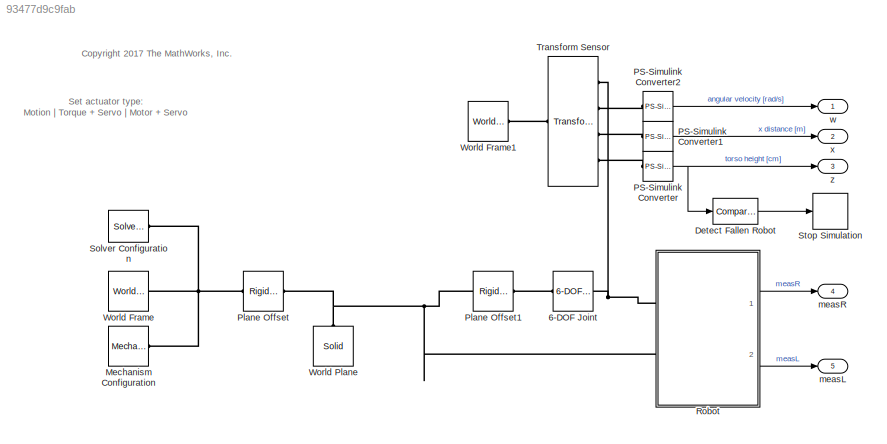
MODEL slx_93477d9c9fab
KIND model
CONFIG AbsTol = auto
CONFIG EnableMultiTasking = on
CONFIG FixedStep = auto
CONFIG InitFcn = initAnglesR = evalSmoothTrajectory(curveData,0);\ninitAnglesL = evalSmoothTrajectory(curveData,-curveData.gaitPeriod/2);
CONFIG MaxStep = auto
CONFIG MinStep = auto
CONFIG RelTol = auto
CONFIG SampleTimeConstraint = Unconstrained
CONFIG Solver = ode15s
CONFIG SolverName = ode15s
CONFIG StartTime = 0.0
CONFIG StopTime = 10
BLOCK [Reference] 6-DOF Joint  REF=sm_lib/Joints/6-DOF Joint
  Ports = [0, 0, 0, 0, 0, 1, 1]
  SourceBlock = sm_lib/Joints/6-DOF Joint
  SourceProductBaseCode = MS
  SourceProductName = Simscape Multibody
  SourceType = 6-DOF Joint
BLOCK [Reference] Detect Fallen Robot  REF=simulink/Logic and Bit
Operations/Compare
To Constant
  Ports = [1, 1]
  SourceBlock = simulink/Logic and Bit\nOperations/Compare\nTo Constant
  SourceProductBaseCode = SL
  SourceProductName = Simulink
  SourceType = Compare To Constant
BLOCK [Reference] Mechanism Configuration  REF=sm_lib/Utilities/Mechanism
Configuration
  Ports = [0, 0, 0, 0, 0, 0, 1]
  SourceBlock = sm_lib/Utilities/Mechanism\nConfiguration
  SourceProductBaseCode = MS
  SourceProductName = Simscape Multibody
  SourceType = Mechanism\nConfiguration
BLOCK [Reference] PS-Simulink Converter  REF=nesl_utility/PS-Simulink
Converter
  Ports = [0, 1, 0, 0, 0, 1]
  SourceBlock = nesl_utility/PS-Simulink\nConverter
  SourceProductBaseCode = SS
  SourceProductName = Simscape
  SourceType = PS-Simulink\nConverter
BLOCK [Reference] PS-Simulink Converter1  REF=nesl_utility/PS-Simulink
Converter
  Ports = [0, 1, 0, 0, 0, 1]
  SourceBlock = nesl_utility/PS-Simulink\nConverter
  SourceProductBaseCode = SS
  SourceProductName = Simscape
  SourceType = PS-Simulink\nConverter
BLOCK [Reference] PS-Simulink Converter2  REF=nesl_utility/PS-Simulink
Converter
  Ports = [0, 1, 0, 0, 0, 1]
  SourceBlock = nesl_utility/PS-Simulink\nConverter
  SourceProductBaseCode = SS
  SourceProductName = Simscape
  SourceType = PS-Simulink\nConverter
BLOCK [Reference] Plane Offset  REF=sm_lib/Frames and
Transforms/Rigid
Transform
  Ports = [0, 0, 0, 0, 0, 1, 1]
  SourceBlock = sm_lib/Frames and\nTransforms/Rigid\nTransform
  SourceProductBaseCode = MS
  SourceProductName = Simscape Multibody
  SourceType = Rigid\nTransform
BLOCK [Reference] Plane Offset1  REF=sm_lib/Frames and
Transforms/Rigid
Transform
  Ports = [0, 0, 0, 0, 0, 1, 1]
  SourceBlock = sm_lib/Frames and\nTransforms/Rigid\nTransform
  SourceProductBaseCode = MS
  SourceProductName = Simscape Multibody
  SourceType = Rigid\nTransform
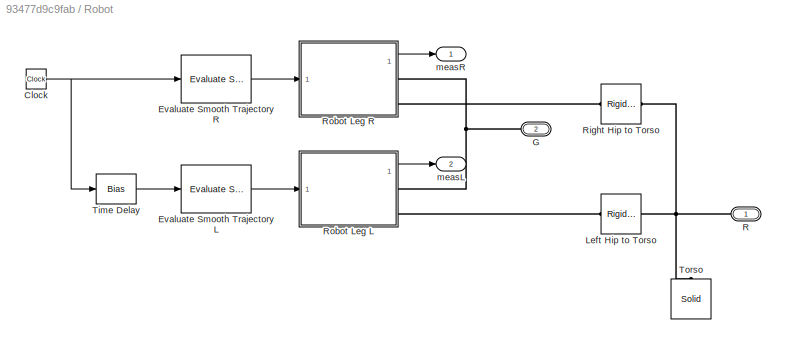
BLOCK [SubSystem] Robot
  Ports = [0, 2, 0, 0, 0, 2]
  RequestExecContextInheritance = off
  Variant = off
BLOCK [Clock] Robot/Clock
  Decimation = 1
BLOCK [Reference] Robot/Evaluate Smooth Trajectory L  REF=walkingRobotUtils/Evaluate Smooth 
Trajectory
  Ports = [1, 1]
  SourceBlock = walkingRobotUtils/Evaluate Smooth \nTrajectory
  SourceType = SubSystem
BLOCK [Reference] Robot/Evaluate Smooth Trajectory R  REF=walkingRobotUtils/Evaluate Smooth 
Trajectory
  Ports = [1, 1]
  SourceBlock = walkingRobotUtils/Evaluate Smooth \nTrajectory
  SourceType = SubSystem
BLOCK [PMIOPort] Robot/G
  Port = 2
  Side = Left
BLOCK [Reference] Robot/Left Hip to Torso  REF=sm_lib/Frames and
Transforms/Rigid
Transform
  Ports = [0, 0, 0, 0, 0, 1, 1]
  SourceBlock = sm_lib/Frames and\nTransforms/Rigid\nTransform
  SourceProductBaseCode = MS
  SourceProductName = Simscape Multibody
  SourceType = Rigid\nTransform
BLOCK [PMIOPort] Robot/R
  Port = 1
  Side = Left
BLOCK [Reference] Robot/Right Hip to Torso  REF=sm_lib/Frames and
Transforms/Rigid
Transform
  Ports = [0, 0, 0, 0, 0, 1, 1]
  SourceBlock = sm_lib/Frames and\nTransforms/Rigid\nTransform
  SourceProductBaseCode = MS
  SourceProductName = Simscape Multibody
  SourceType = Rigid\nTransform
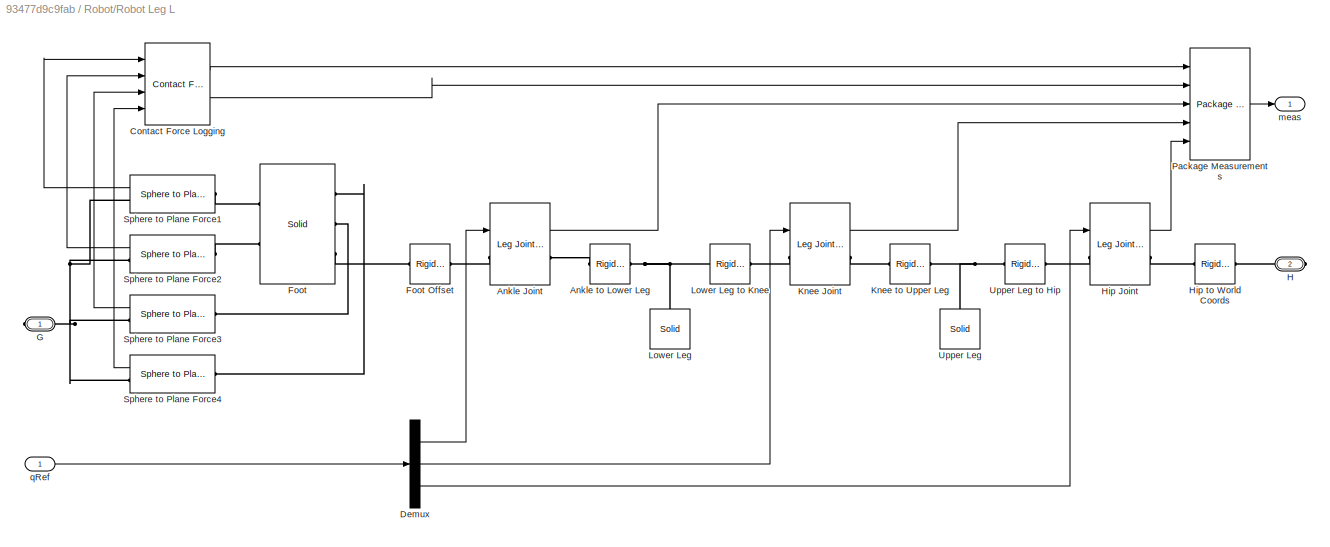
BLOCK [SubSystem] Robot/Robot Leg L
  Ports = [1, 1, 0, 0, 0, 0, 2]
  RequestExecContextInheritance = off
  Variant = off
BLOCK [Reference] Robot/Robot Leg L/Ankle Joint  REF=walkingRobotUtils/Leg Joint Actuator
  Ports = [1, 1, 0, 0, 0, 1, 1]
  SourceBlock = walkingRobotUtils/Leg Joint Actuator
  SourceType = Leg Joint Actuator
BLOCK [Reference] Robot/Robot Leg L/Ankle to Lower Leg  REF=sm_lib/Frames and
Transforms/Rigid
Transform
  Ports = [0, 0, 0, 0, 0, 1, 1]
  SourceBlock = sm_lib/Frames and\nTransforms/Rigid\nTransform
  SourceProductBaseCode = MS
  SourceProductName = Simscape Multibody
  SourceType = Rigid\nTransform
BLOCK [Reference] Robot/Robot Leg L/Contact Force Logging  REF=walkingRobotUtils/Contact Force Logging
  Ports = [4, 2]
  SourceBlock = walkingRobotUtils/Contact Force Logging
  SourceType = SubSystem
BLOCK [Demux] Robot/Robot Leg L/Demux
  DisplayOption = bar
  Outputs = 3
  Ports = [1, 3]
BLOCK [Reference] Robot/Robot Leg L/Foot  REF=sm_lib/Body Elements/Solid
  Ports = [0, 0, 0, 0, 0, 3, 2]
  SourceBlock = sm_lib/Body Elements/Solid
  SourceProductBaseCode = MS
  SourceProductName = Simscape Multibody
  SourceType = Solid
BLOCK [Reference] Robot/Robot Leg L/Foot Offset  REF=sm_lib/Frames and
Transforms/Rigid
Transform
  Ports = [0, 0, 0, 0, 0, 1, 1]
  SourceBlock = sm_lib/Frames and\nTransforms/Rigid\nTransform
  SourceProductBaseCode = MS
  SourceProductName = Simscape Multibody
  SourceType = Rigid\nTransform
BLOCK [PMIOPort] Robot/Robot Leg L/G
  Port = 1
  Side = Right
BLOCK [PMIOPort] Robot/Robot Leg L/H
  Port = 2
  Side = Right
BLOCK [Reference] Robot/Robot Leg L/Hip Joint  REF=walkingRobotUtils/Leg Joint Actuator
  Ports = [1, 1, 0, 0, 0, 1, 1]
  SourceBlock = walkingRobotUtils/Leg Joint Actuator
  SourceType = Leg Joint Actuator
BLOCK [Reference] Robot/Robot Leg L/Hip to World Coords  REF=sm_lib/Frames and
Transforms/Rigid
Transform
  Ports = [0, 0, 0, 0, 0, 1, 1]
  SourceBlock = sm_lib/Frames and\nTransforms/Rigid\nTransform
  SourceProductBaseCode = MS
  SourceProductName = Simscape Multibody
  SourceType = Rigid\nTransform
BLOCK [Reference] Robot/Robot Leg L/Knee Joint  REF=walkingRobotUtils/Leg Joint Actuator
  Ports = [1, 1, 0, 0, 0, 1, 1]
  SourceBlock = walkingRobotUtils/Leg Joint Actuator
  SourceType = Leg Joint Actuator
BLOCK [Reference] Robot/Robot Leg L/Knee to Upper Leg  REF=sm_lib/Frames and
Transforms/Rigid
Transform
  Ports = [0, 0, 0, 0, 0, 1, 1]
  SourceBlock = sm_lib/Frames and\nTransforms/Rigid\nTransform
  SourceProductBaseCode = MS
  SourceProductName = Simscape Multibody
  SourceType = Rigid\nTransform
BLOCK [Reference] Robot/Robot Leg L/Lower Leg  REF=sm_lib/Body Elements/Solid
  Ports = [0, 0, 0, 0, 0, 0, 1]
  SourceBlock = sm_lib/Body Elements/Solid
  SourceProductBaseCode = MS
  SourceProductName = Simscape Multibody
  SourceType = Solid
BLOCK [Reference] Robot/Robot Leg L/Lower Leg to Knee  REF=sm_lib/Frames and
Transforms/Rigid
Transform
  Ports = [0, 0, 0, 0, 0, 1, 1]
  SourceBlock = sm_lib/Frames and\nTransforms/Rigid\nTransform
  SourceProductBaseCode = MS
  SourceProductName = Simscape Multibody
  SourceType = Rigid\nTransform
BLOCK [Reference] Robot/Robot Leg L/Package Measurements  REF=walkingRobotUtils/Package 
Measurements
  Ports = [5, 1]
  SourceBlock = walkingRobotUtils/Package \nMeasurements
  SourceType = SubSystem
BLOCK [Reference] Robot/Robot Leg L/Sphere to Plane Force1  REF=Contact_Forces_Lib/3D/Sphere to Plane Force
  Ports = [0, 1, 0, 0, 0, 1, 1]
  SourceBlock = Contact_Forces_Lib/3D/Sphere to Plane Force
  SourceProductName = Simscape Multibody Contact Forces Library
  SourceType = Sphere to Plane Force
BLOCK [Reference] Robot/Robot Leg L/Sphere to Plane Force2  REF=Contact_Forces_Lib/3D/Sphere to Plane Force
  Ports = [0, 1, 0, 0, 0, 1, 1]
  SourceBlock = Contact_Forces_Lib/3D/Sphere to Plane Force
  SourceProductName = Simscape Multibody Contact Forces Library
  SourceType = Sphere to Plane Force
BLOCK [Reference] Robot/Robot Leg L/Sphere to Plane Force3  REF=Contact_Forces_Lib/3D/Sphere to Plane Force
  Ports = [0, 1, 0, 0, 0, 1, 1]
  SourceBlock = Contact_Forces_Lib/3D/Sphere to Plane Force
  SourceProductName = Simscape Multibody Contact Forces Library
  SourceType = Sphere to Plane Force
BLOCK [Reference] Robot/Robot Leg L/Sphere to Plane Force4  REF=Contact_Forces_Lib/3D/Sphere to Plane Force
  Ports = [0, 1, 0, 0, 0, 1, 1]
  SourceBlock = Contact_Forces_Lib/3D/Sphere to Plane Force
  SourceProductName = Simscape Multibody Contact Forces Library
  SourceType = Sphere to Plane Force
BLOCK [Reference] Robot/Robot Leg L/Upper Leg  REF=sm_lib/Body Elements/Solid
  Ports = [0, 0, 0, 0, 0, 0, 1]
  SourceBlock = sm_lib/Body Elements/Solid
  SourceProductBaseCode = MS
  SourceProductName = Simscape Multibody
  SourceType = Solid
BLOCK [Reference] Robot/Robot Leg L/Upper Leg to Hip  REF=sm_lib/Frames and
Transforms/Rigid
Transform
  Ports = [0, 0, 0, 0, 0, 1, 1]
  SourceBlock = sm_lib/Frames and\nTransforms/Rigid\nTransform
  SourceProductBaseCode = MS
  SourceProductName = Simscape Multibody
  SourceType = Rigid\nTransform
BLOCK [Outport] Robot/Robot Leg L/meas
  IconDisplay = Port number
BLOCK [Inport] Robot/Robot Leg L/qRef
  IconDisplay = Port number
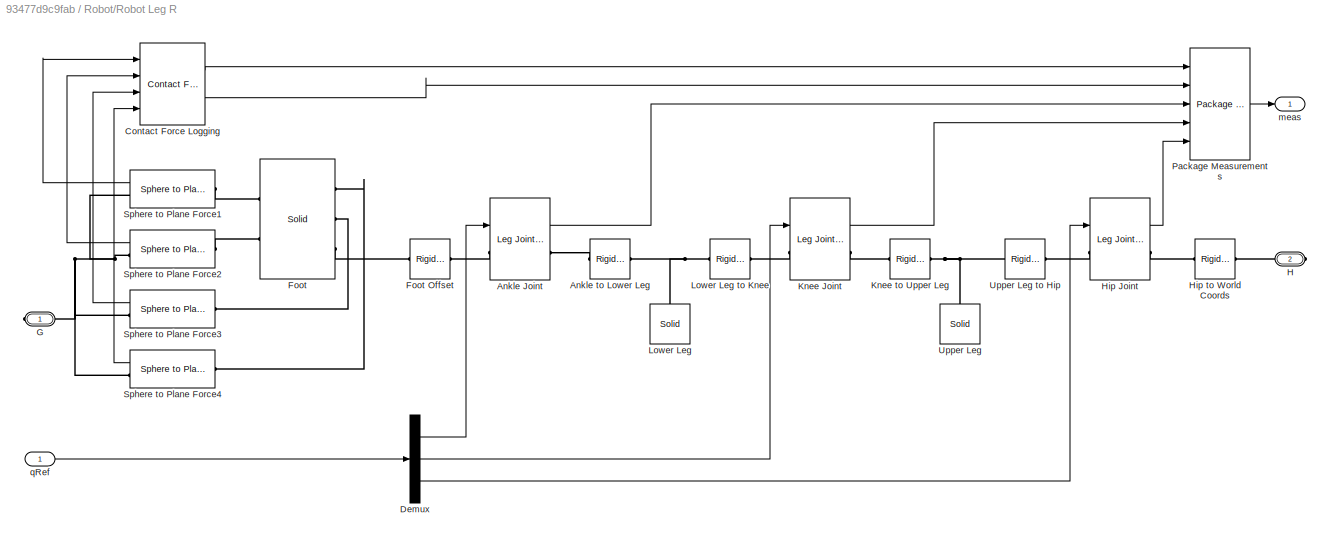
BLOCK [SubSystem] Robot/Robot Leg R
  Ports = [1, 1, 0, 0, 0, 0, 2]
  RequestExecContextInheritance = off
  Variant = off
BLOCK [Reference] Robot/Robot Leg R/Ankle Joint  REF=walkingRobotUtils/Leg Joint Actuator
  Ports = [1, 1, 0, 0, 0, 1, 1]
  SourceBlock = walkingRobotUtils/Leg Joint Actuator
  SourceType = Leg Joint Actuator
BLOCK [Reference] Robot/Robot Leg R/Ankle to Lower Leg  REF=sm_lib/Frames and
Transforms/Rigid
Transform
  Ports = [0, 0, 0, 0, 0, 1, 1]
  SourceBlock = sm_lib/Frames and\nTransforms/Rigid\nTransform
  SourceProductBaseCode = MS
  SourceProductName = Simscape Multibody
  SourceType = Rigid\nTransform
BLOCK [Reference] Robot/Robot Leg R/Contact Force Logging  REF=walkingRobotUtils/Contact Force Logging
  Ports = [4, 2]
  SourceBlock = walkingRobotUtils/Contact Force Logging
  SourceType = SubSystem
BLOCK [Demux] Robot/Robot Leg R/Demux
  DisplayOption = bar
  Outputs = 3
  Ports = [1, 3]
BLOCK [Reference] Robot/Robot Leg R/Foot  REF=sm_lib/Body Elements/Solid
  Ports = [0, 0, 0, 0, 0, 3, 2]
  SourceBlock = sm_lib/Body Elements/Solid
  SourceProductBaseCode = MS
  SourceProductName = Simscape Multibody
  SourceType = Solid
BLOCK [Reference] Robot/Robot Leg R/Foot Offset  REF=sm_lib/Frames and
Transforms/Rigid
Transform
  Ports = [0, 0, 0, 0, 0, 1, 1]
  SourceBlock = sm_lib/Frames and\nTransforms/Rigid\nTransform
  SourceProductBaseCode = MS
  SourceProductName = Simscape Multibody
  SourceType = Rigid\nTransform
BLOCK [PMIOPort] Robot/Robot Leg R/G
  Port = 1
  Side = Right
BLOCK [PMIOPort] Robot/Robot Leg R/H
  Port = 2
  Side = Right
BLOCK [Reference] Robot/Robot Leg R/Hip Joint  REF=walkingRobotUtils/Leg Joint Actuator
  Ports = [1, 1, 0, 0, 0, 1, 1]
  SourceBlock = walkingRobotUtils/Leg Joint Actuator
  SourceType = Leg Joint Actuator
BLOCK [Reference] Robot/Robot Leg R/Hip to World Coords  REF=sm_lib/Frames and
Transforms/Rigid
Transform
  Ports = [0, 0, 0, 0, 0, 1, 1]
  SourceBlock = sm_lib/Frames and\nTransforms/Rigid\nTransform
  SourceProductBaseCode = MS
  SourceProductName = Simscape Multibody
  SourceType = Rigid\nTransform
BLOCK [Reference] Robot/Robot Leg R/Knee Joint  REF=walkingRobotUtils/Leg Joint Actuator
  Ports = [1, 1, 0, 0, 0, 1, 1]
  SourceBlock = walkingRobotUtils/Leg Joint Actuator
  SourceType = Leg Joint Actuator
BLOCK [Reference] Robot/Robot Leg R/Knee to Upper Leg  REF=sm_lib/Frames and
Transforms/Rigid
Transform
  Ports = [0, 0, 0, 0, 0, 1, 1]
  SourceBlock = sm_lib/Frames and\nTransforms/Rigid\nTransform
  SourceProductBaseCode = MS
  SourceProductName = Simscape Multibody
  SourceType = Rigid\nTransform
BLOCK [Reference] Robot/Robot Leg R/Lower Leg  REF=sm_lib/Body Elements/Solid
  Ports = [0, 0, 0, 0, 0, 0, 1]
  SourceBlock = sm_lib/Body Elements/Solid
  SourceProductBaseCode = MS
  SourceProductName = Simscape Multibody
  SourceType = Solid
BLOCK [Reference] Robot/Robot Leg R/Lower Leg to Knee  REF=sm_lib/Frames and
Transforms/Rigid
Transform
  Ports = [0, 0, 0, 0, 0, 1, 1]
  SourceBlock = sm_lib/Frames and\nTransforms/Rigid\nTransform
  SourceProductBaseCode = MS
  SourceProductName = Simscape Multibody
  SourceType = Rigid\nTransform
BLOCK [Reference] Robot/Robot Leg R/Package Measurements  REF=walkingRobotUtils/Package 
Measurements
  Ports = [5, 1]
  SourceBlock = walkingRobotUtils/Package \nMeasurements
  SourceType = SubSystem
BLOCK [Reference] Robot/Robot Leg R/Sphere to Plane Force1  REF=Contact_Forces_Lib/3D/Sphere to Plane Force
  Ports = [0, 1, 0, 0, 0, 1, 1]
  SourceBlock = Contact_Forces_Lib/3D/Sphere to Plane Force
  SourceProductName = Simscape Multibody Contact Forces Library
  SourceType = Sphere to Plane Force
BLOCK [Reference] Robot/Robot Leg R/Sphere to Plane Force2  REF=Contact_Forces_Lib/3D/Sphere to Plane Force
  Ports = [0, 1, 0, 0, 0, 1, 1]
  SourceBlock = Contact_Forces_Lib/3D/Sphere to Plane Force
  SourceProductName = Simscape Multibody Contact Forces Library
  SourceType = Sphere to Plane Force
BLOCK [Reference] Robot/Robot Leg R/Sphere to Plane Force3  REF=Contact_Forces_Lib/3D/Sphere to Plane Force
  Ports = [0, 1, 0, 0, 0, 1, 1]
  SourceBlock = Contact_Forces_Lib/3D/Sphere to Plane Force
  SourceProductName = Simscape Multibody Contact Forces Library
  SourceType = Sphere to Plane Force
BLOCK [Reference] Robot/Robot Leg R/Sphere to Plane Force4  REF=Contact_Forces_Lib/3D/Sphere to Plane Force
  Ports = [0, 1, 0, 0, 0, 1, 1]
  SourceBlock = Contact_Forces_Lib/3D/Sphere to Plane Force
  SourceProductName = Simscape Multibody Contact Forces Library
  SourceType = Sphere to Plane Force
BLOCK [Reference] Robot/Robot Leg R/Upper Leg  REF=sm_lib/Body Elements/Solid
  Ports = [0, 0, 0, 0, 0, 0, 1]
  SourceBlock = sm_lib/Body Elements/Solid
  SourceProductBaseCode = MS
  SourceProductName = Simscape Multibody
  SourceType = Solid
BLOCK [Reference] Robot/Robot Leg R/Upper Leg to Hip  REF=sm_lib/Frames and
Transforms/Rigid
Transform
  Ports = [0, 0, 0, 0, 0, 1, 1]
  SourceBlock = sm_lib/Frames and\nTransforms/Rigid\nTransform
  SourceProductBaseCode = MS
  SourceProductName = Simscape Multibody
  SourceType = Rigid\nTransform
BLOCK [Outport] Robot/Robot Leg R/meas
  IconDisplay = Port number
BLOCK [Inport] Robot/Robot Leg R/qRef
  IconDisplay = Port number
BLOCK [Bias] Robot/Time Delay
  Bias = -curveData.gaitPeriod/2
  SaturateOnIntegerOverflow = off
BLOCK [Reference] Robot/Torso  REF=sm_lib/Body Elements/Solid
  Ports = [0, 0, 0, 0, 0, 0, 1]
  SourceBlock = sm_lib/Body Elements/Solid
  SourceProductBaseCode = MS
  SourceProductName = Simscape Multibody
  SourceType = Solid
BLOCK [Outport] Robot/measL
  IconDisplay = Port number
  Port = 2
BLOCK [Outport] Robot/measR
  IconDisplay = Port number
BLOCK [Reference] Solver Configuration  REF=nesl_utility/Solver
Configuration
  Ports = [0, 0, 0, 0, 0, 0, 1]
  SourceBlock = nesl_utility/Solver\nConfiguration
  SourceProductBaseCode = SS
  SourceProductName = Simscape
  SourceType = Solver\nConfiguration
BLOCK [Stop] Stop Simulation
BLOCK [Reference] Transform Sensor  REF=sm_lib/Frames and
Transforms/Transform
Sensor
  Ports = [0, 0, 0, 0, 0, 1, 4]
  SourceBlock = sm_lib/Frames and\nTransforms/Transform\nSensor
  SourceProductBaseCode = MS
  SourceProductName = Simscape Multibody
  SourceType = Transform\nSensor
BLOCK [Reference] World Frame  REF=sm_lib/Frames and
Transforms/World Frame
  Ports = [0, 0, 0, 0, 0, 0, 1]
  SourceBlock = sm_lib/Frames and\nTransforms/World Frame
  SourceProductBaseCode = MS
  SourceProductName = Simscape Multibody
  SourceType = World Frame
BLOCK [Reference] World Frame1  REF=sm_lib/Frames and
Transforms/World Frame
  Ports = [0, 0, 0, 0, 0, 0, 1]
  SourceBlock = sm_lib/Frames and\nTransforms/World Frame
  SourceProductBaseCode = MS
  SourceProductName = Simscape Multibody
  SourceType = World Frame
BLOCK [Reference] World Plane  REF=sm_lib/Body Elements/Solid
  Ports = [0, 0, 0, 0, 0, 0, 1]
  SourceBlock = sm_lib/Body Elements/Solid
  SourceProductBaseCode = MS
  SourceProductName = Simscape Multibody
  SourceType = Solid
BLOCK [Outport] measL
  IconDisplay = Port number
  Port = 5
BLOCK [Outport] measR
  IconDisplay = Port number
  Port = 4
BLOCK [Outport] w
  IconDisplay = Port number
BLOCK [Outport] x
  IconDisplay = Port number
  Port = 2
BLOCK [Outport] z
  IconDisplay = Port number
  Port = 3
ANNOTATION (root): Set actuator type: Motion | Torque + Servo | Motor + Servo
ANNOTATION (root): <copyright redacted>
LINE Detect Fallen Robot:1 -> Stop Simulation:1
LINE PS-Simulink Converter1:1 -> x:1
LINE PS-Simulink Converter2:1 -> w:1
NET PS-Simulink Converter:1 -> Detect Fallen Robot:1, z:1
NET Robot/Clock:1 -> Robot/Evaluate Smooth Trajectory R:1, Robot/Time Delay:1
LINE Robot/Evaluate Smooth Trajectory L:1 -> Robot/Robot Leg L:1
LINE Robot/Evaluate Smooth Trajectory R:1 -> Robot/Robot Leg R:1
LINE Robot/Robot Leg L/Ankle Joint:1 -> Robot/Robot Leg L/Package Measurements:3
LINE Robot/Robot Leg L/Contact Force Logging:1 -> Robot/Robot Leg L/Package Measurements:1
LINE Robot/Robot Leg L/Contact Force Logging:2 -> Robot/Robot Leg L/Package Measurements:2
LINE Robot/Robot Leg L/Demux:1 -> Robot/Robot Leg L/Ankle Joint:1
LINE Robot/Robot Leg L/Demux:2 -> Robot/Robot Leg L/Knee Joint:1
LINE Robot/Robot Leg L/Demux:3 -> Robot/Robot Leg L/Hip Joint:1
LINE Robot/Robot Leg L/Hip Joint:1 -> Robot/Robot Leg L/Package Measurements:5
LINE Robot/Robot Leg L/Knee Joint:1 -> Robot/Robot Leg L/Package Measurements:4
LINE Robot/Robot Leg L/Package Measurements:1 -> Robot/Robot Leg L/meas:1
LINE Robot/Robot Leg L/Sphere to Plane Force1:1 -> Robot/Robot Leg L/Contact Force Logging:1
LINE Robot/Robot Leg L/Sphere to Plane Force2:1 -> Robot/Robot Leg L/Contact Force Logging:2
LINE Robot/Robot Leg L/Sphere to Plane Force3:1 -> Robot/Robot Leg L/Contact Force Logging:3
LINE Robot/Robot Leg L/Sphere to Plane Force4:1 -> Robot/Robot Leg L/Contact Force Logging:4
LINE Robot/Robot Leg L/qRef:1 -> Robot/Robot Leg L/Demux:1
LINE Robot/Robot Leg L:1 -> Robot/measL:1
LINE Robot/Robot Leg R/Ankle Joint:1 -> Robot/Robot Leg R/Package Measurements:3
LINE Robot/Robot Leg R/Contact Force Logging:1 -> Robot/Robot Leg R/Package Measurements:1
LINE Robot/Robot Leg R/Contact Force Logging:2 -> Robot/Robot Leg R/Package Measurements:2
LINE Robot/Robot Leg R/Demux:1 -> Robot/Robot Leg R/Ankle Joint:1
LINE Robot/Robot Leg R/Demux:2 -> Robot/Robot Leg R/Knee Joint:1
LINE Robot/Robot Leg R/Demux:3 -> Robot/Robot Leg R/Hip Joint:1
LINE Robot/Robot Leg R/Hip Joint:1 -> Robot/Robot Leg R/Package Measurements:5
LINE Robot/Robot Leg R/Knee Joint:1 -> Robot/Robot Leg R/Package Measurements:4
LINE Robot/Robot Leg R/Package Measurements:1 -> Robot/Robot Leg R/meas:1
LINE Robot/Robot Leg R/Sphere to Plane Force1:1 -> Robot/Robot Leg R/Contact Force Logging:1
LINE Robot/Robot Leg R/Sphere to Plane Force2:1 -> Robot/Robot Leg R/Contact Force Logging:2
LINE Robot/Robot Leg R/Sphere to Plane Force3:1 -> Robot/Robot Leg R/Contact Force Logging:3
LINE Robot/Robot Leg R/Sphere to Plane Force4:1 -> Robot/Robot Leg R/Contact Force Logging:4
LINE Robot/Robot Leg R/qRef:1 -> Robot/Robot Leg R/Demux:1
LINE Robot/Robot Leg R:1 -> Robot/measR:1
LINE Robot/Time Delay:1 -> Robot/Evaluate Smooth Trajectory L:1
LINE Robot:1 -> measR:1
LINE Robot:2 -> measL:1
PLINE 6-DOF Joint:LConn1 -- Plane Offset1:RConn1
PNET net1: 6-DOF Joint:RConn1 -- Robot:LConn1 -- Transform Sensor:RConn1
PNET net2: Mechanism Configuration:RConn1 -- Plane Offset:LConn1 -- Solver Configuration:RConn1 -- World Frame:RConn1
PLINE PS-Simulink Converter1:LConn1 -- Transform Sensor:RConn3
PLINE PS-Simulink Converter2:LConn1 -- Transform Sensor:RConn2
PLINE PS-Simulink Converter:LConn1 -- Transform Sensor:RConn4
PNET net3: Plane Offset1:LConn1 -- Plane Offset:RConn1 -- Robot:LConn2 -- World Plane:RConn1
PNET net4: Robot/G:RConn1 -- Robot/Robot Leg L:RConn1 -- Robot/Robot Leg R:RConn1
PNET net5: Robot/Left Hip to Torso:LConn1 -- Robot/R:RConn1 -- Robot/Right Hip to Torso:LConn1 -- Robot/Torso:RConn1
PLINE Robot/Left Hip to Torso:RConn1 -- Robot/Robot Leg L:RConn2
PLINE Robot/Right Hip to Torso:RConn1 -- Robot/Robot Leg R:RConn2
PLINE Robot/Robot Leg L/Ankle Joint:LConn1 -- Robot/Robot Leg L/Foot Offset:RConn1
PLINE Robot/Robot Leg L/Ankle Joint:RConn1 -- Robot/Robot Leg L/Ankle to Lower Leg:LConn1
PNET net6: Robot/Robot Leg L/Ankle to Lower Leg:RConn1 -- Robot/Robot Leg L/Lower Leg to Knee:LConn1 -- Robot/Robot Leg L/Lower Leg:RConn1
PLINE Robot/Robot Leg L/Foot Offset:LConn1 -- Robot/Robot Leg L/Foot:LConn3
PLINE Robot/Robot Leg L/Foot:LConn1 -- Robot/Robot Leg L/Sphere to Plane Force4:LConn1
PLINE Robot/Robot Leg L/Foot:LConn2 -- Robot/Robot Leg L/Sphere to Plane Force3:LConn1
PLINE Robot/Robot Leg L/Foot:RConn1 -- Robot/Robot Leg L/Sphere to Plane Force1:LConn1
PLINE Robot/Robot Leg L/Foot:RConn2 -- Robot/Robot Leg L/Sphere to Plane Force2:LConn1
PNET net7: Robot/Robot Leg L/G:RConn1 -- Robot/Robot Leg L/Sphere to Plane Force1:RConn1 -- Robot/Robot Leg L/Sphere to Plane Force2:RConn1 -- Robot/Robot Leg L/Sphere to Plane Force3:RConn1 -- Robot/Robot Leg L/Sphere to Plane Force4:RConn1
PLINE Robot/Robot Leg L/H:RConn1 -- Robot/Robot Leg L/Hip to World Coords:RConn1
PLINE Robot/Robot Leg L/Hip Joint:LConn1 -- Robot/Robot Leg L/Upper Leg to Hip:RConn1
PLINE Robot/Robot Leg L/Hip Joint:RConn1 -- Robot/Robot Leg L/Hip to World Coords:LConn1
PLINE Robot/Robot Leg L/Knee Joint:LConn1 -- Robot/Robot Leg L/Lower Leg to Knee:RConn1
PLINE Robot/Robot Leg L/Knee Joint:RConn1 -- Robot/Robot Leg L/Knee to Upper Leg:LConn1
PNET net8: Robot/Robot Leg L/Knee to Upper Leg:RConn1 -- Robot/Robot Leg L/Upper Leg to Hip:LConn1 -- Robot/Robot Leg L/Upper Leg:RConn1
PLINE Robot/Robot Leg R/Ankle Joint:LConn1 -- Robot/Robot Leg R/Foot Offset:RConn1
PLINE Robot/Robot Leg R/Ankle Joint:RConn1 -- Robot/Robot Leg R/Ankle to Lower Leg:LConn1
PNET net9: Robot/Robot Leg R/Ankle to Lower Leg:RConn1 -- Robot/Robot Leg R/Lower Leg to Knee:LConn1 -- Robot/Robot Leg R/Lower Leg:RConn1
PLINE Robot/Robot Leg R/Foot Offset:LConn1 -- Robot/Robot Leg R/Foot:LConn3
PLINE Robot/Robot Leg R/Foot:LConn1 -- Robot/Robot Leg R/Sphere to Plane Force4:LConn1
PLINE Robot/Robot Leg R/Foot:LConn2 -- Robot/Robot Leg R/Sphere to Plane Force3:LConn1
PLINE Robot/Robot Leg R/Foot:RConn1 -- Robot/Robot Leg R/Sphere to Plane Force1:LConn1
PLINE Robot/Robot Leg R/Foot:RConn2 -- Robot/Robot Leg R/Sphere to Plane Force2:LConn1
PNET net10: Robot/Robot Leg R/G:RConn1 -- Robot/Robot Leg R/Sphere to Plane Force1:RConn1 -- Robot/Robot Leg R/Sphere to Plane Force2:RConn1 -- Robot/Robot Leg R/Sphere to Plane Force3:RConn1 -- Robot/Robot Leg R/Sphere to Plane Force4:RConn1
PLINE Robot/Robot Leg R/H:RConn1 -- Robot/Robot Leg R/Hip to World Coords:RConn1
PLINE Robot/Robot Leg R/Hip Joint:LConn1 -- Robot/Robot Leg R/Upper Leg to Hip:RConn1
PLINE Robot/Robot Leg R/Hip Joint:RConn1 -- Robot/Robot Leg R/Hip to World Coords:LConn1
PLINE Robot/Robot Leg R/Knee Joint:LConn1 -- Robot/Robot Leg R/Lower Leg to Knee:RConn1
PLINE Robot/Robot Leg R/Knee Joint:RConn1 -- Robot/Robot Leg R/Knee to Upper Leg:LConn1
PNET net11: Robot/Robot Leg R/Knee to Upper Leg:RConn1 -- Robot/Robot Leg R/Upper Leg to Hip:LConn1 -- Robot/Robot Leg R/Upper Leg:RConn1
PLINE Transform Sensor:LConn1 -- World Frame1:RConn1
note: NET lines group one-source signal fan-out (src -> all destinations, sorted); 1:1 wires keep LINE; PNET lines group multi-terminal physical nets as a canonical sorted terminal list (undirected conserving connections); 2-terminal nets keep the pairwise PLINE form
